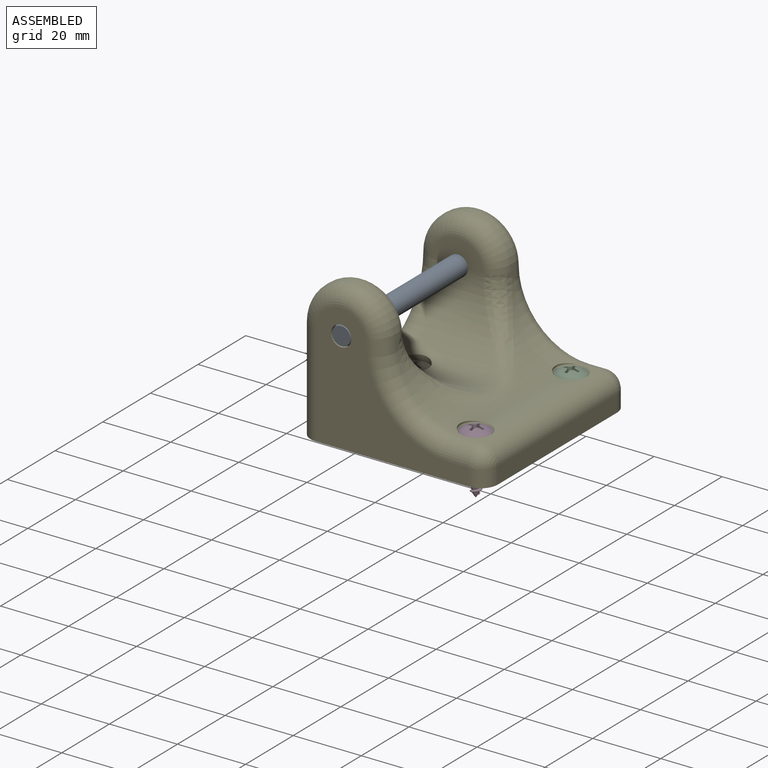
[diagram: assembled view]
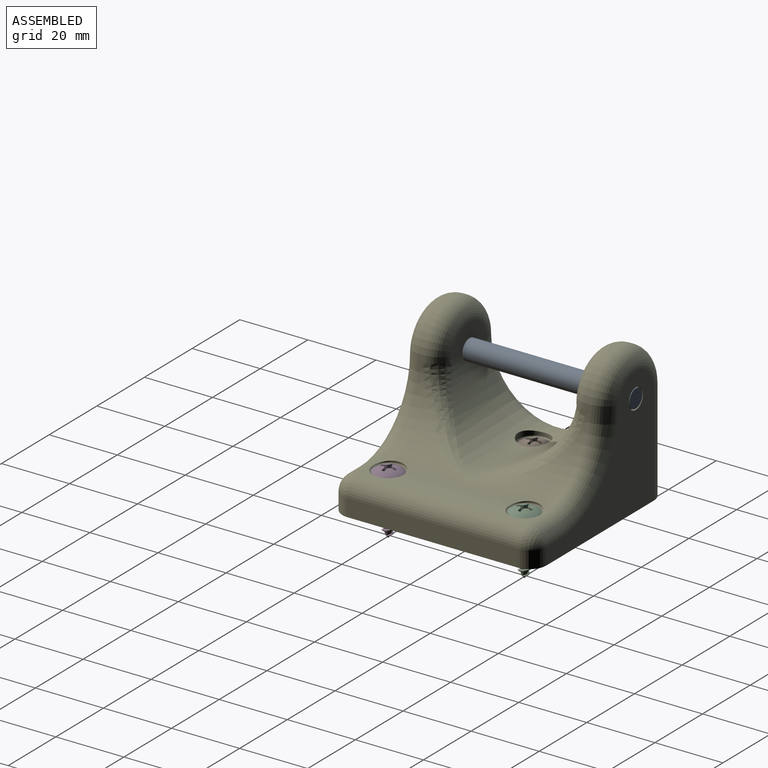
[diagram: assembled view, second angle]
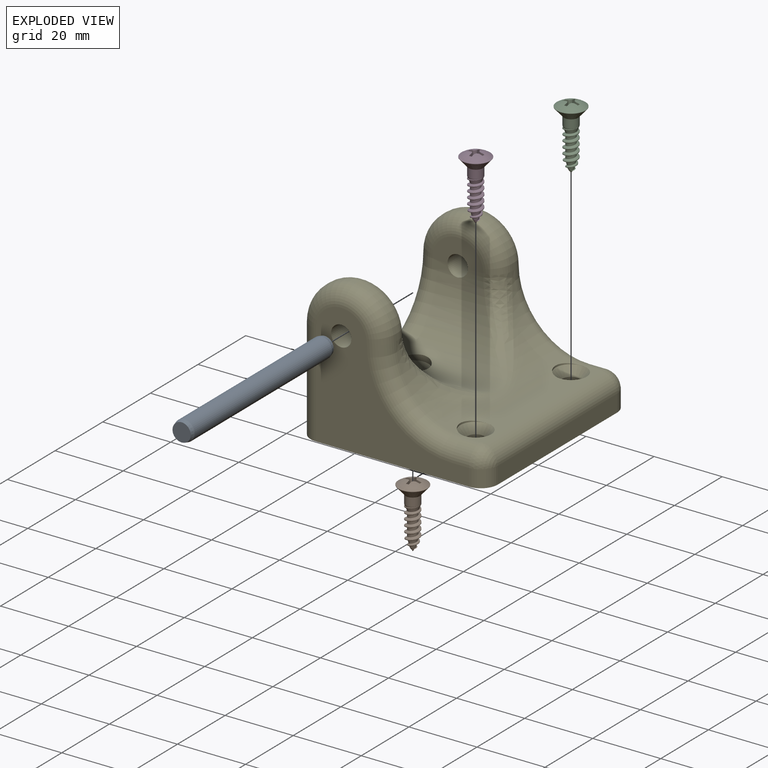
[diagram: exploded view]
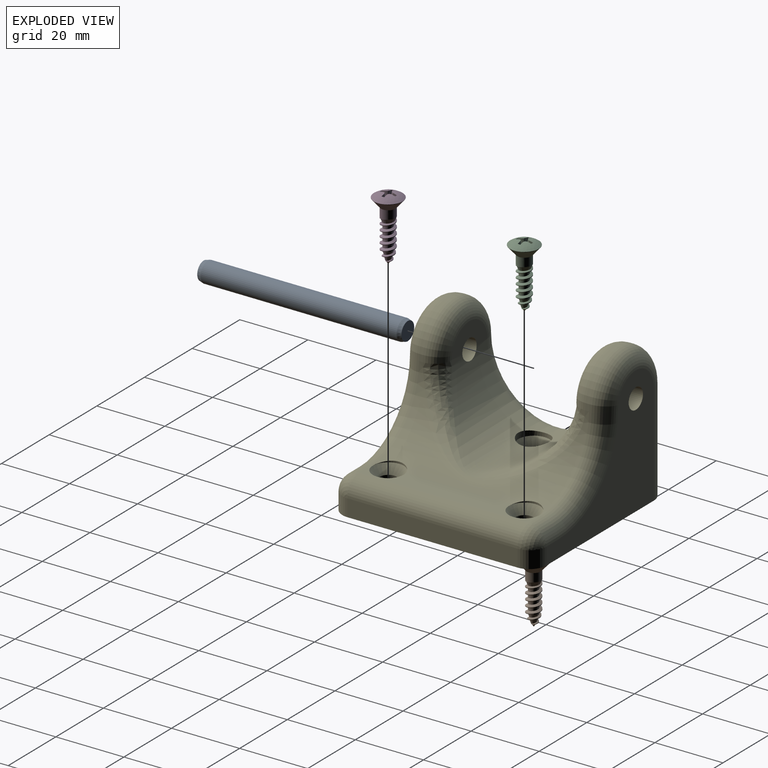
[diagram: exploded view, second angle]
ASSEMBLY  parts=5 mates=4
PART A: 5 faces, bbox 60x6x6 mm
  f0: cone r=3mm half-angle=15deg, axis (1,0,0), area 22.2mm2, adj f2,f4
  f1: cone r=3mm half-angle=15deg, axis (-1,0,0), area 22.2mm2, adj f2,f3
  f2: cylinder r=3mm len=57.6mm, axis (1,0,0), area 1085.7mm2, adj f0,f1
  f3: plane 5.36x5.36mm, normal (1,0,0), area 22.5mm2, adj f1
  f4: plane 5.36x5.36mm, normal (-1,0,0), area 22.5mm2, adj f0
PART B: 36 faces, bbox 19.1x8.5x8.5 mm
  f0: cone r=2.08mm half-angle=55deg, axis (-1,0,0), area 1.4mm2, adj f4,f33,f34,f35
  f1: cone r=2.08mm half-angle=41deg, axis (-1,0,0), area 64.4mm2, adj f2,f5
  f2: cylinder r=2.08mm len=4.17mm, axis (1,0,0), area 32.6mm2, adj f1,f7,f31
  f3: cone r=0.78mm half-angle=13.3deg, axis (-1,0,0), area 9.2mm2, adj f4,f8,f32,f33,f34
  f4: cone r=700.21mm half-angle=35deg, axis (-1,0,0), area 2.3mm2, adj f0,f3,f33,f34
  f5: cylinder r=4.22mm len=8.43mm, axis (1,0,0), area 2.3mm2, adj f1,f6
  f6: sphere r=7.39mm, area 54mm2, adj f5,f9,f10,f11,f12,f13,f14,f15
  f7: cone r=1.41mm half-angle=20deg, axis (-1,0,0), area 14.3mm2, adj f2,f8,f30,f32
  f8: cylinder r=1.41mm len=7.09mm, axis (1,0,0), area 26mm2, adj f3,f7,f30,f32,f34
  f9: plane 2.93x1.82mm, normal (0,-1,0), area 2.8mm2, adj f6,f10,f25,f27
  f10: plane 2.97x0.72mm, normal (-0.09,-0.92,0.38), area 0.9mm2, adj f6,f9,f11,f25
  f11: plane 2.97x0.72mm, normal (-0.09,-0.38,0.92), area 0.9mm2, adj f6,f10,f12,f25
  f12: plane 2.93x1.82mm, normal (0,0,1), area 2.8mm2, adj f6,f11,f25,f26
  f13: plane 2.93x1.82mm, normal (0,0,-1), area 2.8mm2, adj f6,f14,f25,f26
  f14: plane 2.97x0.72mm, normal (-0.09,-0.38,-0.92), area 0.9mm2, adj f6,f13,f15,f25
  f15: plane 2.97x0.72mm, normal (-0.09,-0.92,-0.38), area 0.9mm2, adj f6,f14,f16,f25
  f16: plane 2.93x1.82mm, normal (0,-1,0), area 2.8mm2, adj f6,f15,f25,f29
  f17: plane 2.93x1.82mm, normal (0,1,0), area 2.8mm2, adj f6,f18,f25,f29
  f18: plane 2.97x0.72mm, normal (-0.09,0.92,-0.38), area 0.9mm2, adj f6,f17,f19,f25
  f19: plane 2.97x0.72mm, normal (-0.09,0.38,-0.92), area 0.9mm2, adj f6,f18,f20,f25
  f20: plane 2.93x1.82mm, normal (0,0,-1), area 2.8mm2, adj f6,f19,f25,f28
  f21: plane 2.93x1.82mm, normal (0,0,1), area 2.8mm2, adj f6,f22,f25,f28
  f22: plane 2.97x0.72mm, normal (-0.09,0.38,0.92), area 0.9mm2, adj f6,f21,f23,f25
  f23: plane 2.97x0.72mm, normal (-0.09,0.92,0.38), area 0.9mm2, adj f6,f22,f24,f25
  f24: plane 2.93x1.82mm, normal (0,1,0), area 2.8mm2, adj f6,f23,f25,f27
  f25: plane 2.37x2.37mm, normal (-1,0,0), area 3.1mm2, adj f9,f10,f11,f12,f13,f14,f15,f16
  f26: plane 2.66x1.1mm, normal (-0.38,-0.92,0), area 2.3mm2, adj f6,f12,f13,f25
  f27: plane 2.67x1.11mm, normal (-0.38,0,0.92), area 2.3mm2, adj f6,f9,f24,f25
  f28: plane 2.66x1.1mm, normal (-0.38,0.92,0), area 2.3mm2, adj f6,f20,f21,f25
  f29: plane 2.67x1.11mm, normal (-0.38,0,-0.92), area 2.3mm2, adj f6,f16,f17,f25
  f30: bspline ~9.26x4.16mm, area 41mm2, adj f7,f8,f31,f34
  f31: cylinder r=2.08mm len=9.06mm, axis (1,0,0), area 12.7mm2, adj f2,f30,f32,f35
  f32: bspline ~9.53x4.16mm, area 42.9mm2, adj f3,f7,f8,f31,f33
  f33: bspline ~3.87x3.58mm, area 9.7mm2, adj f0,f3,f4,f32,f35
  f34: bspline ~3.99x3.88mm, area 8mm2, adj f0,f3,f4,f8,f30,f35
  f35: bspline ~3.87x3.57mm, area 3.3mm2, adj f0,f31,f33,f34
PART C: same geometry as B
PART D: same geometry as B
PART E: 40 faces, bbox 56x60x44.4 mm
  f0: cylinder r=20mm len=50mm, axis (0,-1,0), area 642.1mm2, adj f2,f5,f9,f17,f20,f28,f38,f39
  f1: cylinder r=18.88mm len=37.75mm, axis (-1,0,0), area 1244.6mm2, adj f4,f8,f12,f13,f14,f17,f37
  f2: cylinder r=12.5mm len=25mm, axis (0,1,0), area 44.2mm2, adj f0,f3,f15,f19
  f3: plane 50x30mm, normal (-1,0,0), area 604.6mm2, adj f2,f5,f6,f14,f18,f30
  f4: cylinder r=3mm len=11.37mm, axis (0,1,0), area 210.8mm2, adj f1,f11,f12
  f5: cylinder r=12.5mm len=25mm, axis (0,1,0), area 44.2mm2, adj f0,f3,f16,f29
  f6: plane 60x55mm, normal (0,0,-1), area 3220.1mm2, adj f3,f7,f10,f11,f18,f22,f25,f30
  f7: plane 50x5mm, normal (1,0,0), area 250mm2, adj f6,f22,f24,f25
  f8: cylinder r=3mm len=11.37mm, axis (0,1,0), area 210.8mm2, adj f1,f10,f13
  f9: plane 50x5mm, normal (0,0,1), area 184.7mm2, adj f0,f21,f24,f27,f38,f39
  f10: plane 45x37.5mm, normal (0,-1,0), area 794.2mm2, adj f6,f8,f25,f27,f28,f29,f30
  f11: plane 45x37.5mm, normal (0,1,0), area 794.2mm2, adj f4,f6,f18,f19,f20,f21,f22
  f12: plane 15x7.5mm, normal (0,-1,0), area 74.2mm2, adj f1,f4,f15
  f13: plane 15x7.5mm, normal (0,1,0), area 74.2mm2, adj f1,f8,f16
  f14: torus R=23.88mm, axis (1,0,0), area 510.6mm2, adj f1,f3,f15,f16
  f15: torus R=7.5mm, axis (0,-1,0), area 263.6mm2, adj f2,f12,f14,f17
  f16: torus R=7.5mm, axis (0,-1,0), area 263.6mm2, adj f5,f13,f14,f17
  f17: bspline ~47.77x22mm, area 343.4mm2, adj f0,f1,f15,f16
  f18: cylinder r=5mm len=30mm, axis (0,0,-1), area 235.6mm2, adj f3,f6,f11,f19
  f19: torus R=7.5mm, axis (0,-1,0), area 263.6mm2, adj f2,f11,f18,f20
  f20: torus R=25mm, axis (0,-1,0), area 269.2mm2, adj f0,f11,f19,f21
  f21: cylinder r=5mm len=5mm, axis (-1,0,0), area 39.3mm2, adj f9,f11,f20,f23
  f22: cylinder r=5mm len=5mm, axis (0,0,1), area 39.3mm2, adj f6,f7,f11,f23
  f23: sphere r=5mm, area 39.3mm2, adj f21,f22,f24
  f24: cylinder r=5mm len=50mm, axis (0,-1,0), area 392.7mm2, adj f7,f9,f23,f26
  f25: cylinder r=5mm len=5mm, axis (0,0,-1), area 39.3mm2, adj f6,f7,f10,f26
  f26: sphere r=5mm, area 39.3mm2, adj f24,f25,f27
  f27: cylinder r=5mm len=5mm, axis (1,0,0), area 39.3mm2, adj f9,f10,f26,f28
  f28: torus R=25mm, axis (0,-1,0), area 269.2mm2, adj f0,f10,f27,f29
  f29: torus R=7.5mm, axis (0,-1,0), area 263.6mm2, adj f5,f10,f28,f30
  f30: cylinder r=5mm len=30mm, axis (0,0,1), area 235.6mm2, adj f3,f6,f10,f29
  f31: cylinder r=2.49mm len=7.61mm, axis (0,0,1), area 119mm2, adj f6,f32
  f32: cone r=2.49mm half-angle=41deg, axis (0,0,1), area 69.9mm2, adj f31,f38
  f33: cylinder r=2.49mm len=7.61mm, axis (0,0,1), area 119mm2, adj f6,f34
  f34: cone r=2.49mm half-angle=41deg, axis (0,0,1), area 69.9mm2, adj f33,f39
  f35: cylinder r=2.49mm len=7.61mm, axis (0,0,1), area 119mm2, adj f6,f36
  f36: cone r=2.49mm half-angle=41deg, axis (0,0,1), area 69.9mm2, adj f35,f37
  f37: cylinder r=4.56mm len=9.12mm, axis (0,0,-1), area 40.5mm2, adj f1,f36
  f38: cylinder r=4.56mm len=9.12mm, axis (0,0,-1), area 4mm2, adj f0,f9,f32
  f39: cylinder r=4.56mm len=9.12mm, axis (0,0,-1), area 4mm2, adj f0,f9,f34
PLACE A rot(axis=(0.58,0.58,0.58),120deg) t=(-14.88,0,30)mm
PLACE B rot(axis=(0.71,0,-0.71),180deg) t=(-14.88,0,0.87)mm
PLACE C rot(axis=(0.71,0,-0.71),180deg) t=(17.62,20,0.87)mm
PLACE D rot(axis=(0.71,0,-0.71),180deg) t=(17.62,-20,0.87)mm
PLACE E t=(-14.88,0,30)mm
MATE fastened C.f1 <-> E.f31  axis (0,0,-1) through (17.62,20,7.19)mm
MATE fastened E.f4 <-> A.f0  axis (0,1,0) through (-14.88,-30,30)mm
MATE fastened D.f1 <-> E.f33  axis (0,0,-1) through (17.62,-20,7.19)mm
MATE fastened B.f1 <-> E.f35  axis (0,0,-1) through (-14.88,0,7.19)mm
